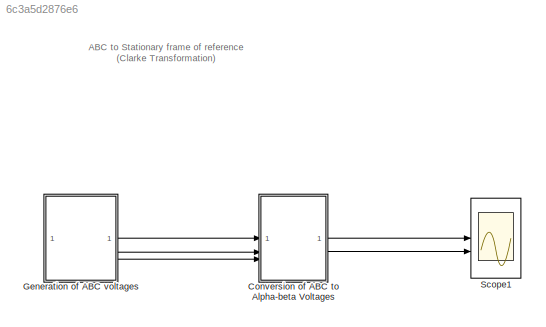
MODEL slx_6c3a5d2876e6
KIND model
CONFIG AbsTol = auto
CONFIG EnableMultiTasking = off
CONFIG FixedStep = auto
CONFIG MaxStep = auto
CONFIG MinStep = auto
CONFIG RelTol = 1e-3
CONFIG SampleTimeConstraint = Unconstrained
CONFIG SolverName = VariableStepAuto
CONFIG StartTime = 0.0
CONFIG StopTime = 0.05
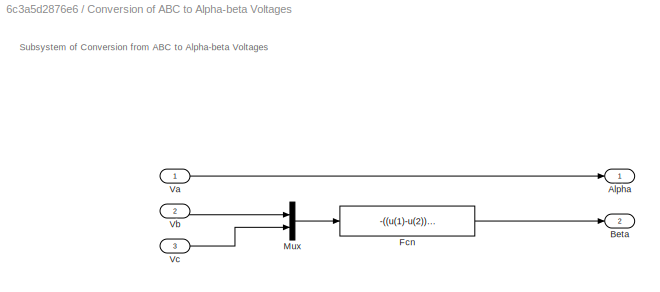
BLOCK [SubSystem] Conversion of ABC to Alpha-beta Voltages
BLOCK [Outport] Conversion of ABC to Alpha-beta Voltages/Alpha
BLOCK [Outport] Conversion of ABC to Alpha-beta Voltages/Beta
  Port = 2
BLOCK [Fcn] Conversion of ABC to Alpha-beta Voltages/Fcn
  Expr = -((u(1)-u(2))/1.732)
BLOCK [Mux] Conversion of ABC to Alpha-beta Voltages/Mux
  DisplayOption = bar
  Inputs = 2
BLOCK [Inport] Conversion of ABC to Alpha-beta Voltages/Va
BLOCK [Inport] Conversion of ABC to Alpha-beta Voltages/Vb
  Port = 2
BLOCK [Inport] Conversion of ABC to Alpha-beta Voltages/Vc
  Port = 3
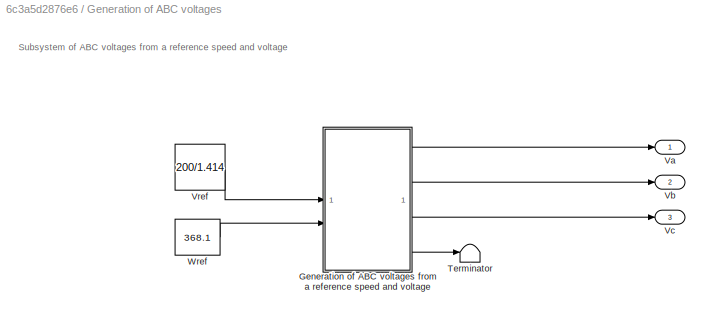
BLOCK [SubSystem] Generation of ABC voltages
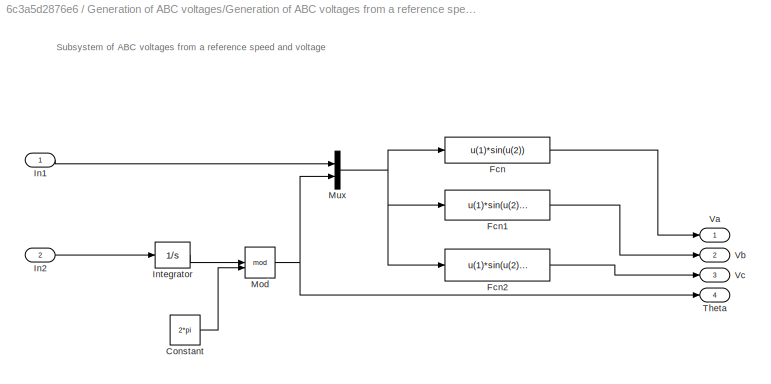
BLOCK [SubSystem] Generation of ABC voltages/Generation of ABC voltages from a reference speed and voltage 
BLOCK [Constant] Generation of ABC voltages/Generation of ABC voltages from a reference speed and voltage /Constant
  Value = 2*pi
BLOCK [Fcn] Generation of ABC voltages/Generation of ABC voltages from a reference speed and voltage /Fcn
  Expr = u(1)*sin(u(2))
BLOCK [Fcn] Generation of ABC voltages/Generation of ABC voltages from a reference speed and voltage /Fcn1
  Expr = u(1)*sin(u(2)-2*pi/3)
BLOCK [Fcn] Generation of ABC voltages/Generation of ABC voltages from a reference speed and voltage /Fcn2
  Expr = u(1)*sin(u(2)+2*pi/3)
BLOCK [Inport] Generation of ABC voltages/Generation of ABC voltages from a reference speed and voltage /In1
BLOCK [Inport] Generation of ABC voltages/Generation of ABC voltages from a reference speed and voltage /In2
  Port = 2
BLOCK [Integrator] Generation of ABC voltages/Generation of ABC voltages from a reference speed and voltage /Integrator
BLOCK [Math] Generation of ABC voltages/Generation of ABC voltages from a reference speed and voltage /Mod
  Operator = mod
BLOCK [Mux] Generation of ABC voltages/Generation of ABC voltages from a reference speed and voltage /Mux
  DisplayOption = bar
  Inputs = 2
BLOCK [Outport] Generation of ABC voltages/Generation of ABC voltages from a reference speed and voltage /Theta
  Port = 4
BLOCK [Outport] Generation of ABC voltages/Generation of ABC voltages from a reference speed and voltage /Va
BLOCK [Outport] Generation of ABC voltages/Generation of ABC voltages from a reference speed and voltage /Vb
  Port = 2
BLOCK [Outport] Generation of ABC voltages/Generation of ABC voltages from a reference speed and voltage /Vc
  Port = 3
BLOCK [Terminator] Generation of ABC voltages/Terminator
BLOCK [Outport] Generation of ABC voltages/Va
BLOCK [Outport] Generation of ABC voltages/Vb
  Port = 2
BLOCK [Outport] Generation of ABC voltages/Vc
  Port = 3
BLOCK [Constant] Generation of ABC voltages/Vref
  Value = 200/1.414
BLOCK [Constant] Generation of ABC voltages/Wref
  Value = 368.1
BLOCK [Scope] Scope1
  Floating = off
  NumInputPorts = 2
  ScopeSpecificationString = Simulink.scopes.TimeScopeBlockCfg('CurrentConfiguration', extmgr.ConfigurationSet(extmgr.Configuration('Core','General UI',true,'FigureColor',[1 1 1]),extmgr.Configuration('Core','Source UI',true),extmgr.Configuration('Sources','WiredSimulink',true),extmgr.Configuration('Visuals','Time Domain',true,'SerializedDisplays',{struct('MinYLimReal','-176.68225','MaxYLimReal','176.79454','YLabelReal','Volt...<+1688ch>
ANNOTATION (root): ABC to Stationary frame of reference (Clarke Transformation)
ANNOTATION Conversion of ABC to Alpha-beta Voltages: Subsystem of Conversion from ABC to Alpha-beta Voltages
ANNOTATION Generation of ABC voltages: Subsystem of ABC voltages from a reference speed and voltage
ANNOTATION Generation of ABC voltages/Generation of ABC voltages from a reference speed and voltage : Subsystem of ABC voltages from a reference speed and voltage
LINE Conversion of ABC to Alpha-beta Voltages/Fcn:1 -> Conversion of ABC to Alpha-beta Voltages/Beta:1
LINE Conversion of ABC to Alpha-beta Voltages/Mux:1 -> Conversion of ABC to Alpha-beta Voltages/Fcn:1
LINE Conversion of ABC to Alpha-beta Voltages/Va:1 -> Conversion of ABC to Alpha-beta Voltages/Alpha:1
LINE Conversion of ABC to Alpha-beta Voltages/Vb:1 -> Conversion of ABC to Alpha-beta Voltages/Mux:1
LINE Conversion of ABC to Alpha-beta Voltages/Vc:1 -> Conversion of ABC to Alpha-beta Voltages/Mux:2
LINE Conversion of ABC to Alpha-beta Voltages:1 -> Scope1:1
LINE Conversion of ABC to Alpha-beta Voltages:2 -> Scope1:2
LINE Generation of ABC voltages/Generation of ABC voltages from a reference speed and voltage /Constant:1 -> Generation of ABC voltages/Generation of ABC voltages from a reference speed and voltage /Mod:2
LINE Generation of ABC voltages/Generation of ABC voltages from a reference speed and voltage /Fcn1:1 -> Generation of ABC voltages/Generation of ABC voltages from a reference speed and voltage /Vb:1
LINE Generation of ABC voltages/Generation of ABC voltages from a reference speed and voltage /Fcn2:1 -> Generation of ABC voltages/Generation of ABC voltages from a reference speed and voltage /Vc:1
LINE Generation of ABC voltages/Generation of ABC voltages from a reference speed and voltage /Fcn:1 -> Generation of ABC voltages/Generation of ABC voltages from a reference speed and voltage /Va:1
LINE Generation of ABC voltages/Generation of ABC voltages from a reference speed and voltage /In1:1 -> Generation of ABC voltages/Generation of ABC voltages from a reference speed and voltage /Mux:1
LINE Generation of ABC voltages/Generation of ABC voltages from a reference speed and voltage /In2:1 -> Generation of ABC voltages/Generation of ABC voltages from a reference speed and voltage /Integrator:1
LINE Generation of ABC voltages/Generation of ABC voltages from a reference speed and voltage /Integrator:1 -> Generation of ABC voltages/Generation of ABC voltages from a reference speed and voltage /Mod:1
NET Generation of ABC voltages/Generation of ABC voltages from a reference speed and voltage /Mod:1 -> Generation of ABC voltages/Generation of ABC voltages from a reference speed and voltage /Mux:2, Generation of ABC voltages/Generation of ABC voltages from a reference speed and voltage /Theta:1
NET Generation of ABC voltages/Generation of ABC voltages from a reference speed and voltage /Mux:1 -> Generation of ABC voltages/Generation of ABC voltages from a reference speed and voltage /Fcn1:1, Generation of ABC voltages/Generation of ABC voltages from a reference speed and voltage /Fcn2:1, Generation of ABC voltages/Generation of ABC voltages from a reference speed and voltage /Fcn:1
LINE Generation of ABC voltages/Generation of ABC voltages from a reference speed and voltage :1 -> Generation of ABC voltages/Va:1
LINE Generation of ABC voltages/Generation of ABC voltages from a reference speed and voltage :2 -> Generation of ABC voltages/Vb:1
LINE Generation of ABC voltages/Generation of ABC voltages from a reference speed and voltage :3 -> Generation of ABC voltages/Vc:1
LINE Generation of ABC voltages/Generation of ABC voltages from a reference speed and voltage :4 -> Generation of ABC voltages/Terminator:1
LINE Generation of ABC voltages/Vref:1 -> Generation of ABC voltages/Generation of ABC voltages from a reference speed and voltage :1
LINE Generation of ABC voltages/Wref:1 -> Generation of ABC voltages/Generation of ABC voltages from a reference speed and voltage :2
LINE Generation of ABC voltages:1 -> Conversion of ABC to Alpha-beta Voltages:1
LINE Generation of ABC voltages:2 -> Conversion of ABC to Alpha-beta Voltages:2
LINE Generation of ABC voltages:3 -> Conversion of ABC to Alpha-beta Voltages:3
note: NET lines group one-source signal fan-out (src -> all destinations, sorted); 1:1 wires keep LINE
